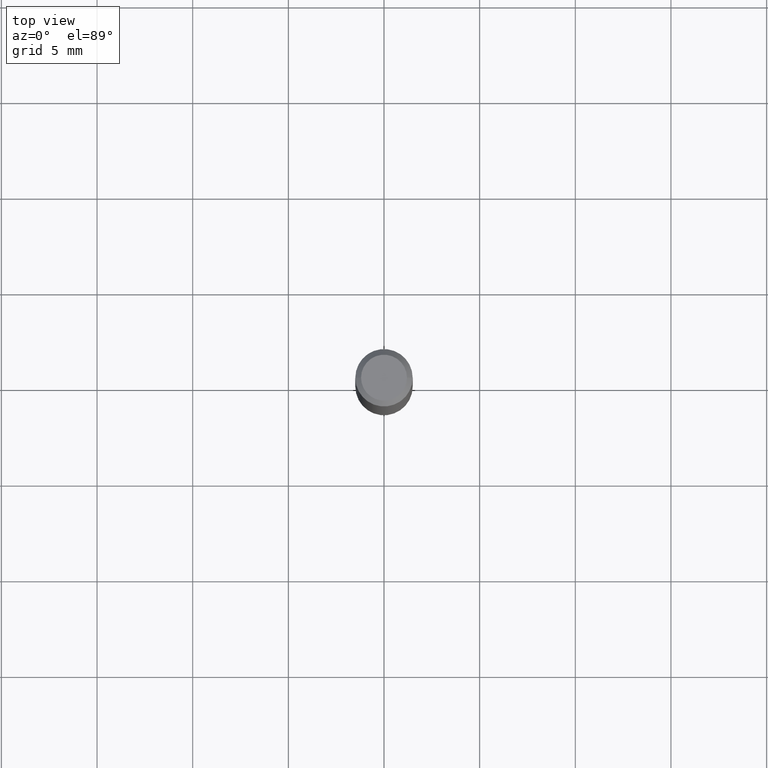
[diagram: clean part render]
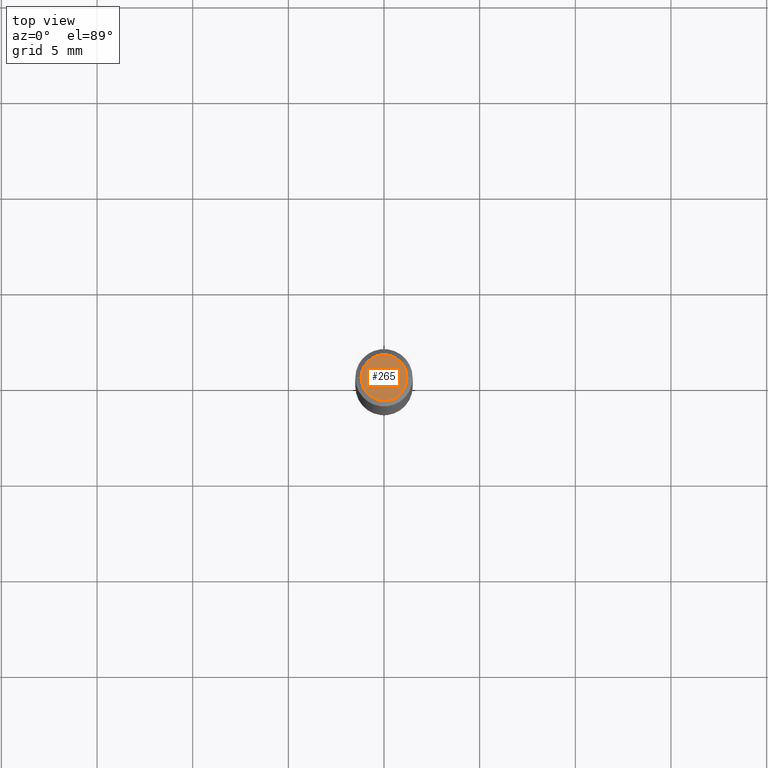
[diagram: same view with one face highlighted and labeled with its STEP entity id]
A machine part, top view. The second image highlights one B-rep face of the part: STEP entity #265.
In plain terms, the highlighted planar face has unit normal (0, -0, -1).
Its self-contained STEP definition (entity closure, byte-faithful):
#18 = VERTEX_POINT ( 'NONE', #365 ) ;
#33 = PLANE ( 'NONE',  #292 ) ;
#152 = DIRECTION ( 'NONE',  ( -2.445468806185136597E-29, 3.491481338843145583E-15, 1.000000000000000000 ) ) ;
#161 = CARTESIAN_POINT ( 'NONE',  ( 0.04724000000000000421, -3.852183633974369345E-16, -3.380025165621689721E-19 ) ) ;
#166 = VERTEX_POINT ( 'NONE', #161 ) ;
#191 = CARTESIAN_POINT ( 'NONE',  ( 4.132873053354867254E-48, -5.900647395337818946E-34, -1.690012582823346072E-19 ) ) ;
#197 = DIRECTION ( 'NONE',  ( 1.000000000000000000, -6.982962677686266711E-15, 4.876185090822587894E-29 ) ) ;
#205 = FACE_OUTER_BOUND ( 'NONE', #430, .T. ) ;
#221 = ORIENTED_EDGE ( 'NONE', *, *, #296, .T. ) ;
#252 = AXIS2_PLACEMENT_3D ( 'NONE', #462, #347, #197 ) ;
#262 = ORIENTED_EDGE ( 'NONE', *, *, #356, .T. ) ;
#265 = ADVANCED_FACE ( 'NONE', ( #205 ), #33, .F. ) ;
#292 = AXIS2_PLACEMENT_3D ( 'NONE', #191, #399, #459 ) ;
#296 = EDGE_CURVE ( 'NONE', #18, #166, #477, .T. ) ;
#304 = DIRECTION ( 'NONE',  ( 1.000000000000000000, -6.982962677686266711E-15, 4.876185090822587894E-29 ) ) ;
#307 = CARTESIAN_POINT ( 'NONE',  ( 8.265746106709734507E-48, -1.180129479067563789E-33, -3.380025165646692144E-19 ) ) ;
#323 = AXIS2_PLACEMENT_3D ( 'NONE', #307, #152, #304 ) ;
#347 = DIRECTION ( 'NONE',  ( -2.445468806185136597E-29, 3.491481338843145583E-15, 1.000000000000000000 ) ) ;
#356 = EDGE_CURVE ( 'NONE', #166, #18, #424, .T. ) ;
#365 = CARTESIAN_POINT ( 'NONE',  ( -0.04724000000000000421, 3.504923541997677355E-16, -3.380025165670481712E-19 ) ) ;
#399 = DIRECTION ( 'NONE',  ( 2.438088387897960049E-29, -3.491481338843145188E-15, -1.000000000000000000 ) ) ;
#424 = CIRCLE ( 'NONE', #252, 0.04724000000000000421 ) ;
#430 = EDGE_LOOP ( 'NONE', ( #221, #262 ) ) ;
#459 = DIRECTION ( 'NONE',  ( -1.000000000000000000, 6.982962677686265922E-15, -4.876176775795935793E-29 ) ) ;
#462 = CARTESIAN_POINT ( 'NONE',  ( 8.265746106709734507E-48, -1.180129479067563789E-33, -3.380025165646692144E-19 ) ) ;
#477 = CIRCLE ( 'NONE', #323, 0.04724000000000000421 ) ;